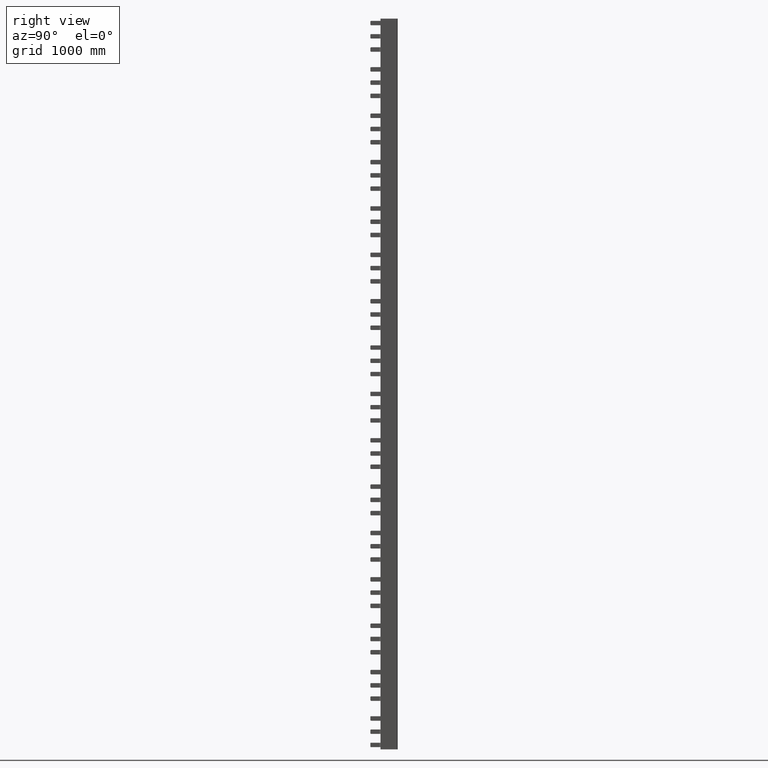
[diagram: clean part render]
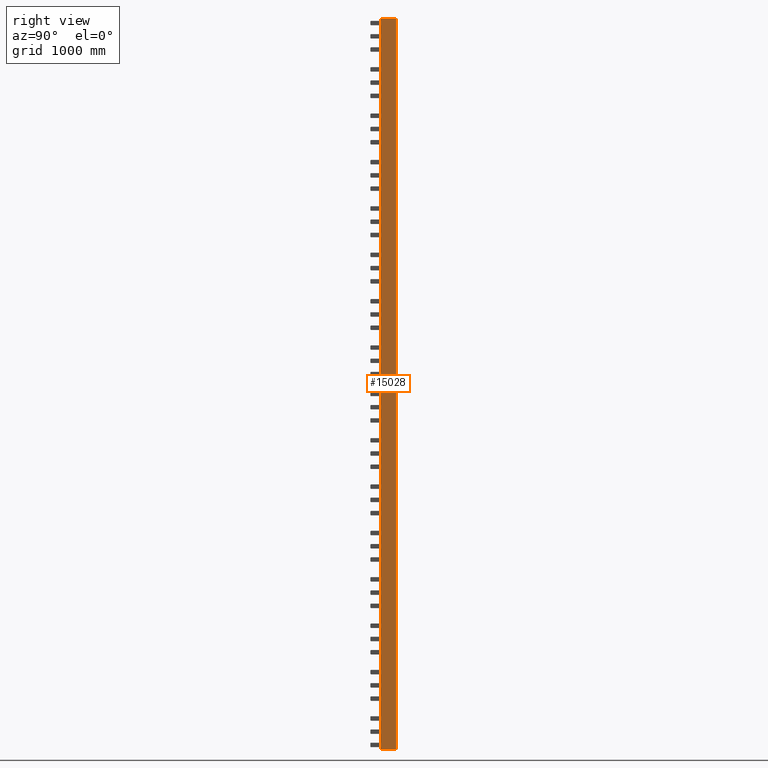
[diagram: same view with one face highlighted and labeled with its STEP entity id]
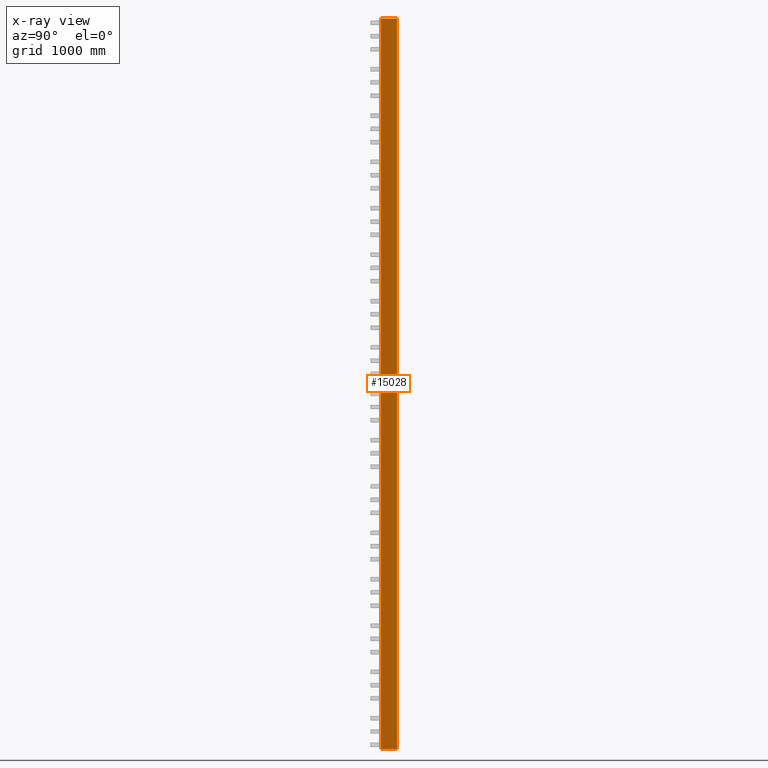
[diagram: x-ray of the same camera — body ghosted, the highlighted face saturated]
A machine part, right view. The second image highlights one B-rep face of the part: STEP entity #15028.
The next image is the same camera in x-ray: the body ghosted, the highlighted face saturated — about 0% of this face is hidden behind the body in this view.
In plain terms, the highlighted planar face has unit normal (1, 0, 0).
Its self-contained STEP definition (entity closure, byte-faithful):
#14502=CARTESIAN_POINT('',(6910.0208871467676,6266.4066631202204,-10000.0));
#14503=VERTEX_POINT('',#14502);
#14511=CARTESIAN_POINT('',(6910.0208871468158,6049.4066631202577,-10000.0));
#14512=VERTEX_POINT('',#14511);
#14513=CARTESIAN_POINT('',(6910.0208871468158,6049.4066631202577,-10000.0));
#14514=DIRECTION('',(-2.095610E-013,1.0,0.0));
#14515=VECTOR('',#14514,216.99999999996362);
#14516=LINE('',#14513,#14515);
#14517=EDGE_CURVE('',#14512,#14503,#14516,.T.);
#14854=CARTESIAN_POINT('',(6910.020887146813,6049.4066631202577,-180.0));
#14855=VERTEX_POINT('',#14854);
#14863=CARTESIAN_POINT('',(6910.0208871467676,6266.4066631202204,-180.0));
#14864=VERTEX_POINT('',#14863);
#14865=CARTESIAN_POINT('',(6910.0208871467676,6266.4066631202204,-180.0));
#14866=DIRECTION('',(2.179434E-013,-1.0,0.0));
#14867=VECTOR('',#14866,216.99999999996362);
#14868=LINE('',#14865,#14867);
#14869=EDGE_CURVE('',#14864,#14855,#14868,.T.);
#14989=CARTESIAN_POINT('',(6910.0208871467676,6266.4066631202204,-180.0));
#14990=DIRECTION('',(0.0,0.0,-1.0));
#14991=VECTOR('',#14990,9820.0);
#14992=LINE('',#14989,#14991);
#14993=EDGE_CURVE('',#14864,#14503,#14992,.T.);
#15008=CARTESIAN_POINT('',(6910.0208871468158,6049.4066631202577,-10000.0));
#15009=DIRECTION('',(0.0,0.0,1.0));
#15010=VECTOR('',#15009,9820.0);
#15011=LINE('',#15008,#15010);
#15012=EDGE_CURVE('',#14512,#14855,#15011,.T.);
#15017=CARTESIAN_POINT('',(6910.0208871468158,6046.4066631202568,0.0));
#15018=DIRECTION('',(1.0,2.162521E-013,0.0));
#15019=DIRECTION('',(0.0,0.0,-1.0));
#15020=AXIS2_PLACEMENT_3D('',#15017,#15018,#15019);
#15021=PLANE('',#15020);
#15022=ORIENTED_EDGE('',*,*,#14869,.T.);
#15023=ORIENTED_EDGE('',*,*,#15012,.F.);
#15024=ORIENTED_EDGE('',*,*,#14517,.T.);
#15025=ORIENTED_EDGE('',*,*,#14993,.F.);
#15026=EDGE_LOOP('',(#15022,#15023,#15024,#15025));
#15027=FACE_OUTER_BOUND('',#15026,.T.);
#15028=ADVANCED_FACE('',(#15027),#15021,.T.);